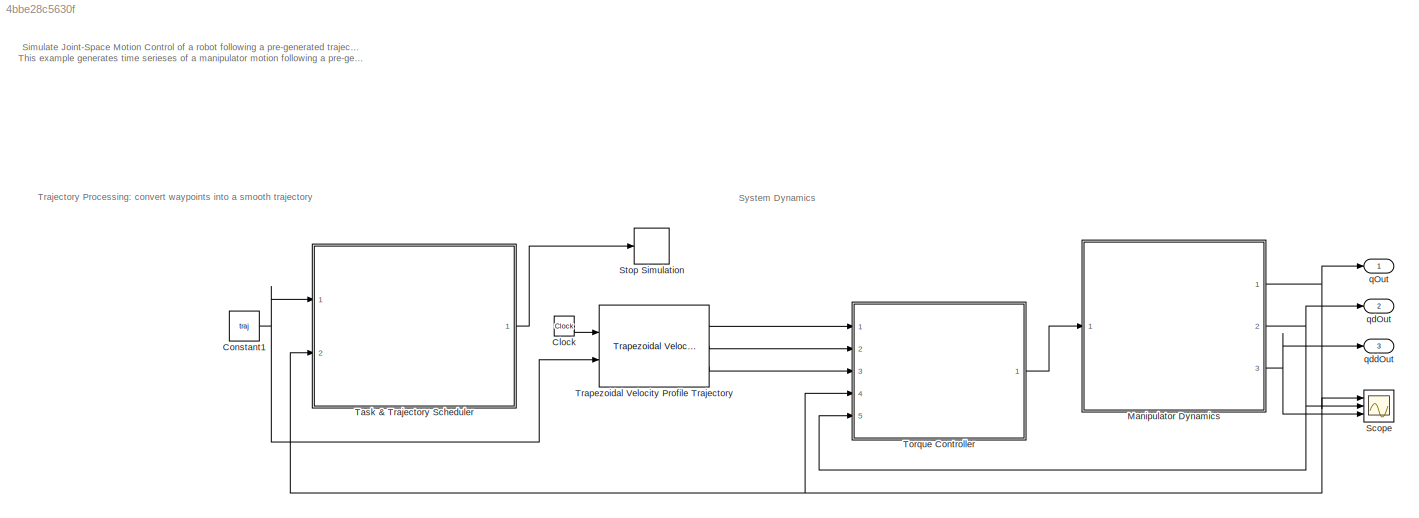
MODEL slx_4bbe28c5630f
KIND model
CONFIG AbsTol = 1e-2
CONFIG EnableMultiTasking = off
CONFIG FixedStep = auto
CONFIG MaxStep = 0.1
CONFIG MinStep = auto
CONFIG RelTol = 1e-2
CONFIG SampleTimeConstraint = Unconstrained
CONFIG SolverName = VariableStepAuto
CONFIG StartTime = 0.0
CONFIG StopTime = 20
BLOCK [Clock] Clock
BLOCK [Constant] Constant1
  Value = traj
  VectorParams1D = off
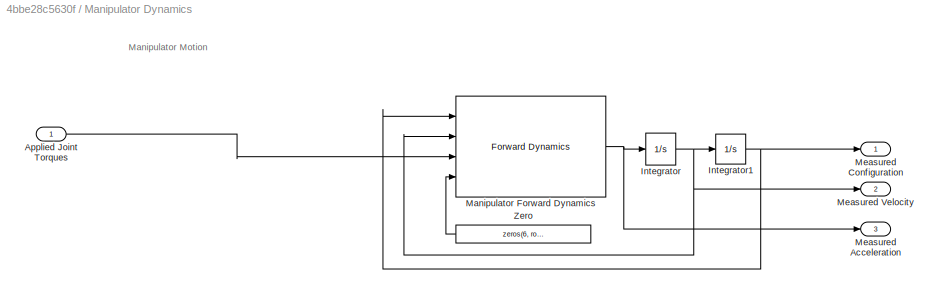
BLOCK [SubSystem] Manipulator Dynamics
  Ports = [1, 3]
  RequestExecContextInheritance = off
BLOCK [Inport] Manipulator Dynamics/Applied Joint Torques
BLOCK [Integrator] Manipulator Dynamics/Integrator
  InitialCondition = dq0
  Ports = [1, 1]
BLOCK [Integrator] Manipulator Dynamics/Integrator1
  InitialCondition = q0
  LimitOutput = on
  LowerSaturationLimit = jointLimits(:,1)
  Ports = [1, 1]
  UpperSaturationLimit = jointLimits(:,2)
BLOCK [Reference] Manipulator Dynamics/Manipulator Forward Dynamics  REF=robotmaniplib/Forward Dynamics
  Ports = [4, 1]
  SourceBlock = robotmaniplib/Forward Dynamics
  SourceProductBaseCode = RO
  SourceType = Forward Dynamics
BLOCK [Outport] Manipulator Dynamics/Measured Acceleration
  Port = 3
  VectorParamsAs1DForOutWhenUnconnected = off
BLOCK [Outport] Manipulator Dynamics/Measured Configuration
  VectorParamsAs1DForOutWhenUnconnected = off
BLOCK [Outport] Manipulator Dynamics/Measured Velocity
  Port = 2
  VectorParamsAs1DForOutWhenUnconnected = off
BLOCK [Constant] Manipulator Dynamics/Zero
  OutDataTypeStr = Inherit: Inherit via back propagation
  Value = zeros(6, robot.NumBodies)
BLOCK [Scope] Scope
  Floating = off
  NumInputPorts = 3
  Ports = [3]
  ScopeSpecificationString = Simulink.scopes.TimeScopeBlockCfg('CurrentConfiguration', extmgr.ConfigurationSet(extmgr.Configuration('Core','General UI',true),extmgr.Configuration('Core','Source UI',true),extmgr.Configuration('Sources','WiredSimulink',true),extmgr.Configuration('Visuals','Time Domain',true,'SerializedDisplays',{struct('MinYLimReal','-2.14002','MaxYLimReal','2.27909','YLabelReal','q','MinYLimMag','0.00000','Max...<+3288ch>
BLOCK [Stop] Stop Simulation
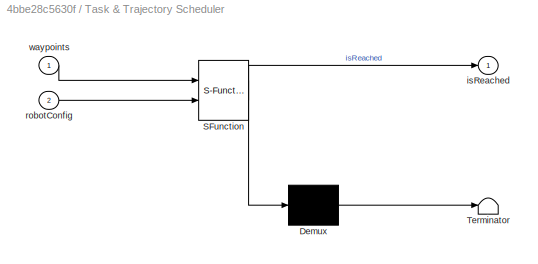
BLOCK [SubSystem] Task & Trajectory Scheduler
  ErrorFcn = Stateflow.Translate.translate
  PermitHierarchicalResolution = ExplicitOnly
  Ports = [2, 1]
  RequestExecContextInheritance = off
  SFBlockType = MATLAB Function
  TreatAsAtomicUnit = on
BLOCK [Demux] Task & Trajectory Scheduler/ Demux 
  Outputs = 1
  Ports = [1, 1]
BLOCK [S-Function] Task & Trajectory Scheduler/ SFunction 
  EnableBusSupport = on
  FunctionName = sf_sfun
  PortCounts = [2 2]
  Ports = [2, 2]
  SFcnIsStateOwnerBlock = off
  SFunctionDeploymentMode = off
  Tag = Stateflow S-Function 1
BLOCK [Terminator] Task & Trajectory Scheduler/ Terminator 
BLOCK [Outport] Task & Trajectory Scheduler/isReached
BLOCK [Inport] Task & Trajectory Scheduler/robotConfig
  Port = 2
BLOCK [Inport] Task & Trajectory Scheduler/waypoints
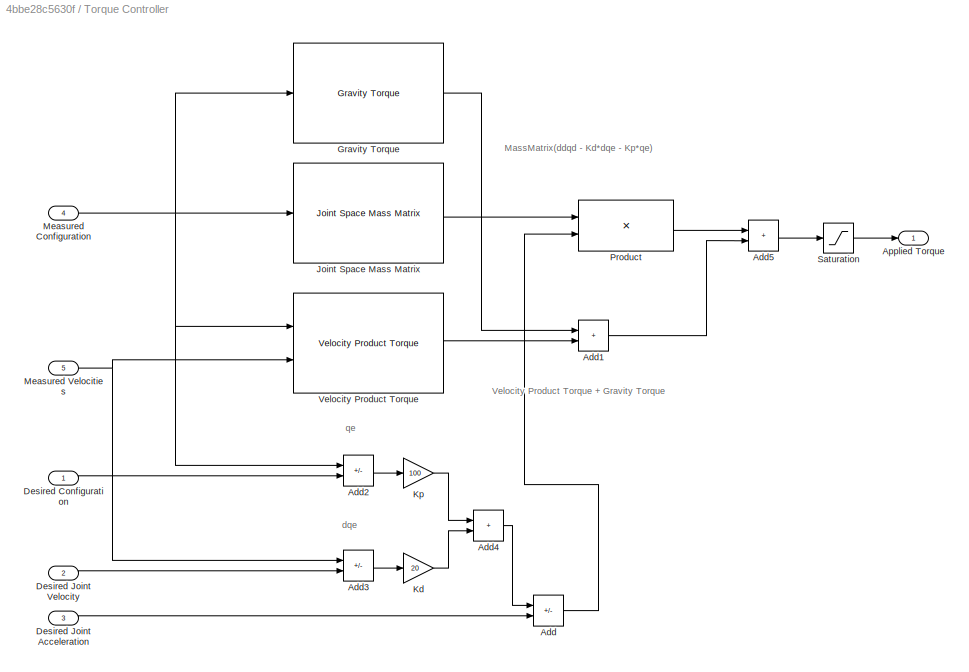
BLOCK [SubSystem] Torque Controller
  Ports = [5, 1]
  RequestExecContextInheritance = off
BLOCK [Sum] Torque Controller/Add
  IconShape = rectangular
  Inputs = -+
  Ports = [2, 1]
BLOCK [Sum] Torque Controller/Add1
  IconShape = rectangular
  Ports = [2, 1]
BLOCK [Sum] Torque Controller/Add2
  IconShape = rectangular
  Inputs = +-
  Ports = [2, 1]
BLOCK [Sum] Torque Controller/Add3
  IconShape = rectangular
  Inputs = +-
  Ports = [2, 1]
BLOCK [Sum] Torque Controller/Add4
  IconShape = rectangular
  Ports = [2, 1]
BLOCK [Sum] Torque Controller/Add5
  IconShape = rectangular
  Ports = [2, 1]
BLOCK [Outport] Torque Controller/Applied Torque
  VectorParamsAs1DForOutWhenUnconnected = off
BLOCK [Inport] Torque Controller/Desired Configuration
BLOCK [Inport] Torque Controller/Desired Joint Acceleration
  Port = 3
BLOCK [Inport] Torque Controller/Desired Joint Velocity
  Port = 2
BLOCK [Reference] Torque Controller/Gravity Torque  REF=robotmaniplib/Gravity Torque
  Ports = [1, 1]
  SourceBlock = robotmaniplib/Gravity Torque
  SourceProductBaseCode = RO
  SourceType = Gravity Torque
BLOCK [Reference] Torque Controller/Joint Space Mass Matrix  REF=robotmaniplib/Joint Space Mass Matrix
  Ports = [1, 1]
  SourceBlock = robotmaniplib/Joint Space Mass Matrix
  SourceProductBaseCode = RO
  SourceType = Joint Space Mass Matrix
BLOCK [Gain] Torque Controller/Kd
  Gain = 20
BLOCK [Gain] Torque Controller/Kp
  Gain = 100
BLOCK [Inport] Torque Controller/Measured Configuration
  Port = 4
BLOCK [Inport] Torque Controller/Measured Velocities
  Port = 5
BLOCK [Product] Torque Controller/Product
  Multiplication = Matrix(*)
  Ports = [2, 1]
BLOCK [Saturate] Torque Controller/Saturation
  LowerLimit = -100
  UpperLimit = 100
BLOCK [Reference] Torque Controller/Velocity Product Torque  REF=robotmaniplib/Velocity Product Torque
  Ports = [2, 1]
  SourceBlock = robotmaniplib/Velocity Product Torque
  SourceProductBaseCode = RO
  SourceType = Velocity Product Torque
BLOCK [Reference] Trapezoidal Velocity Profile Trajectory  REF=robotcorelib/Trapezoidal Velocity Profile Trajectory
  Ports = [2, 3]
  SourceBlock = robotcorelib/Trapezoidal Velocity Profile Trajectory
  SourceProductBaseCode = RO,NV,RR,UV
  SourceType = robotics.slcore.internal.block.TrapVelTrajSys
BLOCK [Outport] qOut
  SignalName = qOut
BLOCK [Outport] qdOut
  Port = 2
  SignalName = qdOut
BLOCK [Outport] qddOut
  Port = 3
  SignalName = qddOut
ANNOTATION (root): Simulate Joint-Space Motion Control of a robot following a pre-generated trajectory This example generates time serieses of a manipulator motion following a pre-generated trajectory. The motion is controlled by a computed-torque controller. The output includes time serieses for angle positions, angular velocities, and accelerations.
ANNOTATION (root): System Dynamics
ANNOTATION (root): Trajectory Processing: convert waypoints into a smooth trajectory
ANNOTATION Manipulator Dynamics: Manipulator Motion
ANNOTATION Torque Controller: qe
ANNOTATION Torque Controller: dqe
ANNOTATION Torque Controller: MassMatrix(ddqd - Kd*dqe - Kp*qe)
ANNOTATION Torque Controller: Velocity Product Torque + Gravity Torque
LINE Clock:1 -> Trapezoidal Velocity Profile Trajectory:1
NET Constant1:1 -> Task & Trajectory Scheduler:1, Trapezoidal Velocity Profile Trajectory:2
LINE Manipulator Dynamics/Applied Joint Torques:1 -> Manipulator Dynamics/Manipulator Forward Dynamics:3
NET Manipulator Dynamics/Integrator1:1 -> Manipulator Dynamics/Manipulator Forward Dynamics:1, Manipulator Dynamics/Measured Configuration:1
NET Manipulator Dynamics/Integrator:1 -> Manipulator Dynamics/Integrator1:1, Manipulator Dynamics/Manipulator Forward Dynamics:2, Manipulator Dynamics/Measured Velocity:1
NET Manipulator Dynamics/Manipulator Forward Dynamics:1 -> Manipulator Dynamics/Integrator:1, Manipulator Dynamics/Measured Acceleration:1
LINE Manipulator Dynamics/Zero:1 -> Manipulator Dynamics/Manipulator Forward Dynamics:4
NET Manipulator Dynamics:1 -> Scope:1, Task & Trajectory Scheduler:2, Torque Controller:4, qOut:1
NET Manipulator Dynamics:2 -> Scope:2, Torque Controller:5, qdOut:1
NET Manipulator Dynamics:3 -> Scope:3, qddOut:1
LINE Task & Trajectory Scheduler:1 -> Stop Simulation:1
LINE Torque Controller/Add1:1 -> Torque Controller/Add5:2
LINE Torque Controller/Add2:1 -> Torque Controller/Kp:1
LINE Torque Controller/Add3:1 -> Torque Controller/Kd:1
LINE Torque Controller/Add4:1 -> Torque Controller/Add:1
LINE Torque Controller/Add5:1 -> Torque Controller/Saturation:1
LINE Torque Controller/Add:1 -> Torque Controller/Product:2
LINE Torque Controller/Desired Configuration:1 -> Torque Controller/Add2:2
LINE Torque Controller/Desired Joint Acceleration:1 -> Torque Controller/Add:2
LINE Torque Controller/Desired Joint Velocity:1 -> Torque Controller/Add3:2
LINE Torque Controller/Gravity Torque:1 -> Torque Controller/Add1:1
LINE Torque Controller/Joint Space Mass Matrix:1 -> Torque Controller/Product:1
LINE Torque Controller/Kd:1 -> Torque Controller/Add4:2
LINE Torque Controller/Kp:1 -> Torque Controller/Add4:1
NET Torque Controller/Measured Configuration:1 -> Torque Controller/Add2:1, Torque Controller/Gravity Torque:1, Torque Controller/Joint Space Mass Matrix:1, Torque Controller/Velocity Product Torque:1
NET Torque Controller/Measured Velocities:1 -> Torque Controller/Add3:1, Torque Controller/Velocity Product Torque:2
LINE Torque Controller/Product:1 -> Torque Controller/Add5:1
LINE Torque Controller/Saturation:1 -> Torque Controller/Applied Torque:1
LINE Torque Controller/Velocity Product Torque:1 -> Torque Controller/Add1:2
LINE Torque Controller:1 -> Manipulator Dynamics:1
LINE Trapezoidal Velocity Profile Trajectory:1 -> Torque Controller:1
LINE Trapezoidal Velocity Profile Trajectory:2 -> Torque Controller:2
LINE Trapezoidal Velocity Profile Trajectory:3 -> Torque Controller:3
note: NET lines group one-source signal fan-out (src -> all destinations, sorted); 1:1 wires keep LINE
CHART Task & Trajectory Scheduler states=1 transitions=1
  STATE_LABEL 'eML_blk_kernel()'
  STATE_LABEL 'SCRIPT:\nfunction isReached = commandLogic(waypoints, robotConfig)\n\n% Set some variables\nposTgtThreshold = 0.015;\n\n% Initialize variables\nisReached = false;\n\n% Get the current status\ntrajEndConfigReached = endStateReached(robotConfig, waypoints, posTgtThreshold);\n\n% Advance the state and reset time as needed\nif trajEndConfigReached\n    isReached = true;\nend\n\nend\n\nfunction isReached = endStateReache...<+363ch>'
CHART  states=0 transitions=0
